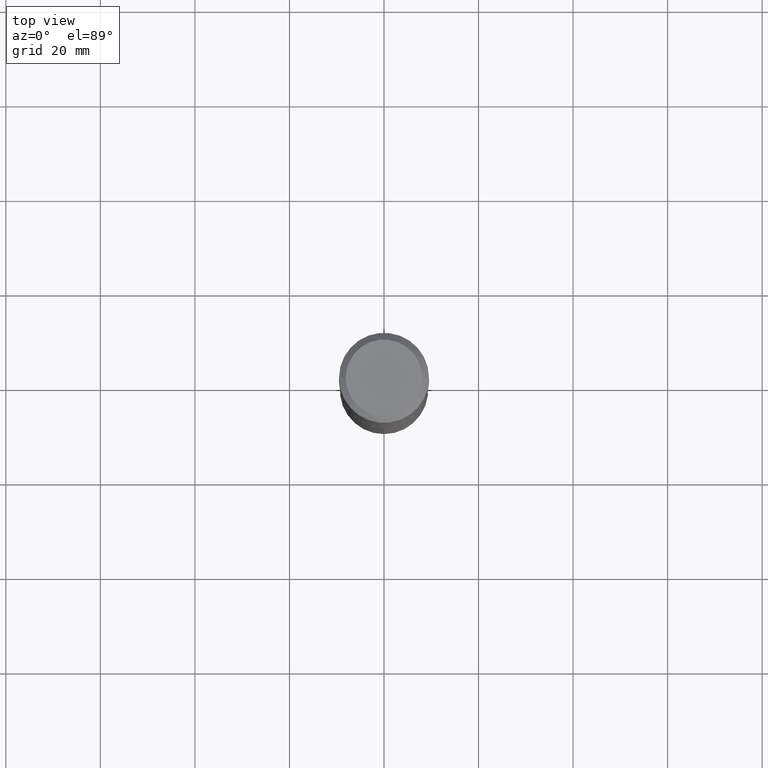
[diagram: clean part render]
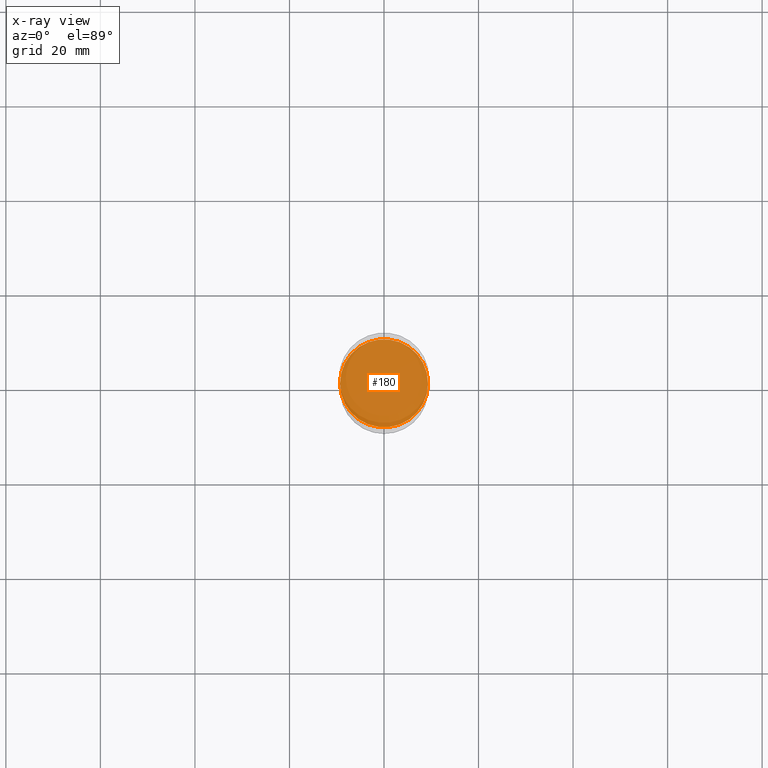
[diagram: x-ray — body ghosted, one internal face saturated and labeled with its STEP entity id]
A machine part, top view, then the same camera in x-ray: the body is ghosted and one INTERNAL B-rep face — a face not visible from any outside direction — is saturated and labeled: STEP entity #180.
In plain terms, the highlighted planar face has unit normal (-0, 0, 1).
Its self-contained STEP definition (entity closure, byte-faithful):
#10 = CARTESIAN_POINT ( 'NONE',  ( -0.3667000000000000814, -6.938897133726299392E-15, -2.734400000000000830 ) ) ;
#20 = CIRCLE ( 'NONE', #289, 0.3667000000000000814 ) ;
#74 = DIRECTION ( 'NONE',  ( -2.438088387897960049E-29, 3.491481338843145188E-15, 1.000000000000000000 ) ) ;
#86 = DIRECTION ( 'NONE',  ( 1.000000000000000000, -6.982962677686264344E-15, 0.000000000000000000 ) ) ;
#101 = DIRECTION ( 'NONE',  ( -2.445468806185136597E-29, 3.491481338843145583E-15, 1.000000000000000000 ) ) ;
#115 = AXIS2_PLACEMENT_3D ( 'NONE', #437, #74, #251 ) ;
#118 = ORIENTED_EDGE ( 'NONE', *, *, #182, .F. ) ;
#134 = CARTESIAN_POINT ( 'NONE',  ( 6.686889903632638979E-29, -9.547106572932700526E-15, -2.734400000000000830 ) ) ;
#169 = ORIENTED_EDGE ( 'NONE', *, *, #336, .F. ) ;
#180 = ADVANCED_FACE ( 'NONE', ( #325 ), #408, .F. ) ;
#182 = EDGE_CURVE ( 'NONE', #344, #466, #20, .T. ) ;
#244 = CIRCLE ( 'NONE', #406, 0.3667000000000000814 ) ;
#251 = DIRECTION ( 'NONE',  ( 1.000000000000000000, -6.982962677686265922E-15, 4.876176775795935793E-29 ) ) ;
#260 = CARTESIAN_POINT ( 'NONE',  ( 0.3667000000000000814, -1.210775898684025347E-14, -2.734400000000000830 ) ) ;
#266 = DIRECTION ( 'NONE',  ( -2.445468806185136597E-29, 3.491481338843145583E-15, 1.000000000000000000 ) ) ;
#289 = AXIS2_PLACEMENT_3D ( 'NONE', #134, #101, #410 ) ;
#325 = FACE_OUTER_BOUND ( 'NONE', #461, .T. ) ;
#336 = EDGE_CURVE ( 'NONE', #466, #344, #244, .T. ) ;
#344 = VERTEX_POINT ( 'NONE', #260 ) ;
#378 = CARTESIAN_POINT ( 'NONE',  ( 6.686889903632638979E-29, -9.547106572932700526E-15, -2.734400000000000830 ) ) ;
#406 = AXIS2_PLACEMENT_3D ( 'NONE', #378, #266, #86 ) ;
#408 = PLANE ( 'NONE',  #115 ) ;
#410 = DIRECTION ( 'NONE',  ( 1.000000000000000000, -6.982962677686264344E-15, 0.000000000000000000 ) ) ;
#437 = CARTESIAN_POINT ( 'NONE',  ( 3.841921925823531165E-29, -1.362126264267666136E-14, -2.734400000000000386 ) ) ;
#461 = EDGE_LOOP ( 'NONE', ( #118, #169 ) ) ;
#466 = VERTEX_POINT ( 'NONE', #10 ) ;